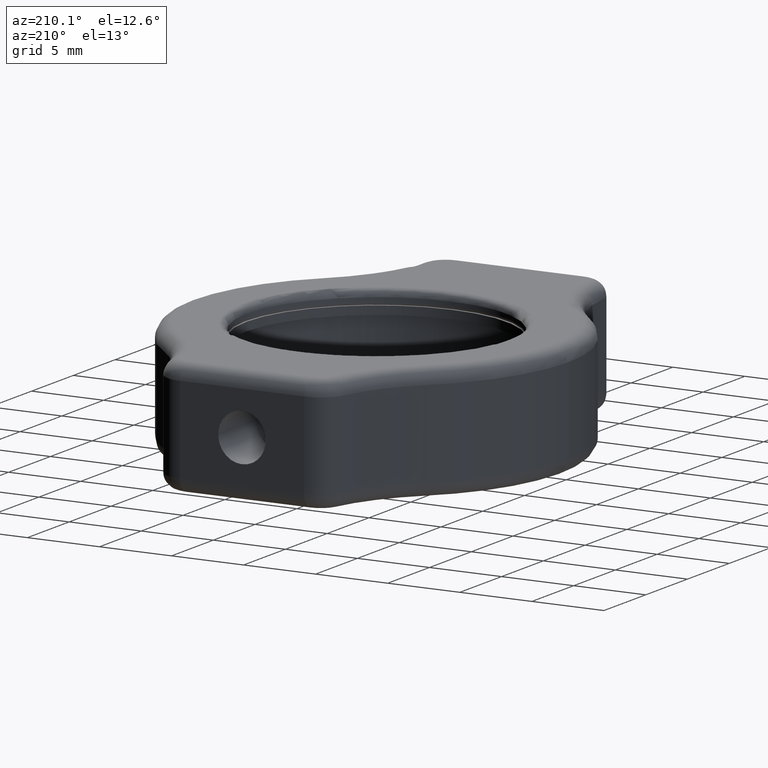
[diagram: clean part render]
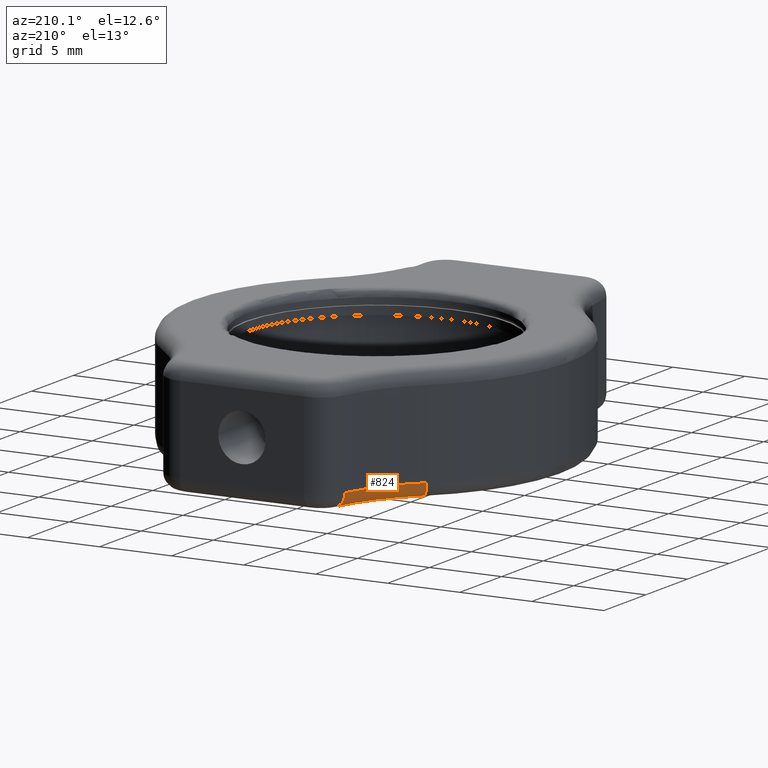
[diagram: same view with one face highlighted and labeled with its STEP entity id]
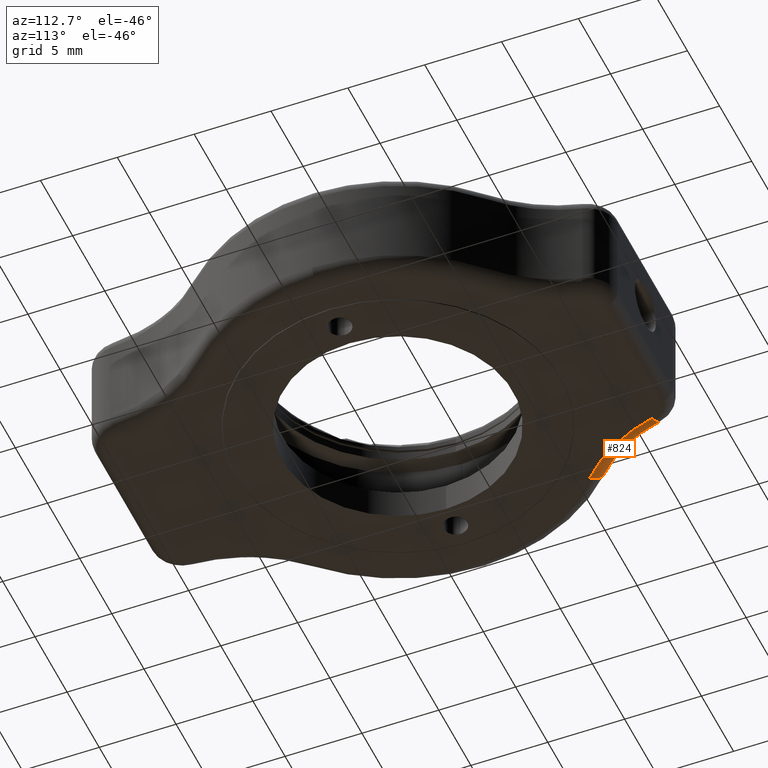
[diagram: same view with one face highlighted and labeled with its STEP entity id]
A machine part, auxiliary view. The second image highlights one B-rep face of the part: STEP entity #824.
A second angle (auxiliary view) of the same face is appended — the face is thin or edge-on in the first view.
In plain terms, the highlighted toroidal blend (fillet) surface has major radius 11 mm and minor (blend) radius 1 mm.
Its self-contained STEP definition (entity closure, byte-faithful):
#9 = DIRECTION ( 'NONE',  ( 0.0000000000000000000, -0.0000000000000000000, -1.000000000000000000 ) ) ;
#175 = AXIS2_PLACEMENT_3D ( 'NONE', #1927, #1401, #2238 ) ;
#195 = ORIENTED_EDGE ( 'NONE', *, *, #787, .T. ) ;
#206 = CARTESIAN_POINT ( 'NONE',  ( -3.058084450885296200, 15.97286217756941800, 30.00000000000000400 ) ) ;
#250 = VERTEX_POINT ( 'NONE', #1171 ) ;
#277 = CIRCLE ( 'NONE', #175, 1.000000000000000200 ) ;
#313 = EDGE_CURVE ( 'NONE', #1650, #1930, #277, .T. ) ;
#337 = DIRECTION ( 'NONE',  ( -0.2394903796156324400, -0.9708987372901256600, -1.684240832373419800E-015 ) ) ;
#421 = CARTESIAN_POINT ( 'NONE',  ( -6.202383685247916400, 10.59383446023992900, 30.00000000000000400 ) ) ;
#428 = EDGE_CURVE ( 'NONE', #1650, #1404, #1069, .T. ) ;
#555 = ORIENTED_EDGE ( 'NONE', *, *, #428, .F. ) ;
#691 = CARTESIAN_POINT ( 'NONE',  ( -3.058084450885296200, 15.97286217756941800, 31.00000000000000400 ) ) ;
#708 = DIRECTION ( 'NONE',  ( 1.000000000000000000, 0.0000000000000000000, 0.0000000000000000000 ) ) ;
#724 = DIRECTION ( 'NONE',  ( -0.0000000000000000000, 0.0000000000000000000, 1.000000000000000000 ) ) ;
#787 = EDGE_CURVE ( 'NONE', #250, #1404, #1659, .T. ) ;
#824 = ADVANCED_FACE ( 'NONE', ( #966 ), #1770, .T. ) ;
#869 = DIRECTION ( 'NONE',  ( 0.9708987372901256600, -0.2394903796156325200, 0.0000000000000000000 ) ) ;
#902 = EDGE_CURVE ( 'NONE', #250, #1930, #1265, .T. ) ;
#966 = FACE_OUTER_BOUND ( 'NONE', #2218, .T. ) ;
#1034 = AXIS2_PLACEMENT_3D ( 'NONE', #1435, #724, #1236 ) ;
#1045 = CARTESIAN_POINT ( 'NONE',  ( -13.73797056107668400, 18.60725635334135600, 31.00000000000000400 ) ) ;
#1069 = CIRCLE ( 'NONE', #1034, 11.00000000000000000 ) ;
#1083 = ORIENTED_EDGE ( 'NONE', *, *, #313, .T. ) ;
#1171 = CARTESIAN_POINT ( 'NONE',  ( -4.028983188175424800, 16.21235255718504900, 31.00000000000000400 ) ) ;
#1236 = DIRECTION ( 'NONE',  ( 1.000000000000000000, 0.0000000000000000000, 0.0000000000000000000 ) ) ;
#1265 = CIRCLE ( 'NONE', #2286, 9.999999999999998200 ) ;
#1401 = DIRECTION ( 'NONE',  ( 0.7284928993728562200, 0.6850533523480704100, 0.0000000000000000000 ) ) ;
#1404 = VERTEX_POINT ( 'NONE', #206 ) ;
#1435 = CARTESIAN_POINT ( 'NONE',  ( -13.73797056107668400, 18.60725635334135600, 30.00000000000000400 ) ) ;
#1581 = CARTESIAN_POINT ( 'NONE',  ( -13.73797056107668400, 18.60725635334135600, 31.00000000000000400 ) ) ;
#1650 = VERTEX_POINT ( 'NONE', #421 ) ;
#1659 = CIRCLE ( 'NONE', #2050, 1.000000000000000000 ) ;
#1722 = DIRECTION ( 'NONE',  ( 1.000000000000000000, 0.0000000000000000000, 0.0000000000000000000 ) ) ;
#1770 = TOROIDAL_SURFACE ( 'NONE', #2011, 11.00000000000000000, 1.000000000000000000 ) ;
#1843 = ORIENTED_EDGE ( 'NONE', *, *, #902, .F. ) ;
#1927 = CARTESIAN_POINT ( 'NONE',  ( -6.202383685247916400, 10.59383446023992900, 31.00000000000000400 ) ) ;
#1930 = VERTEX_POINT ( 'NONE', #1950 ) ;
#1950 = CARTESIAN_POINT ( 'NONE',  ( -6.887437037595987000, 11.32232735961278500, 31.00000000000000400 ) ) ;
#2011 = AXIS2_PLACEMENT_3D ( 'NONE', #1581, #2275, #1722 ) ;
#2050 = AXIS2_PLACEMENT_3D ( 'NONE', #691, #337, #869 ) ;
#2218 = EDGE_LOOP ( 'NONE', ( #1083, #1843, #195, #555 ) ) ;
#2238 = DIRECTION ( 'NONE',  ( -0.6850533523480704100, 0.7284928993728563300, 0.0000000000000000000 ) ) ;
#2275 = DIRECTION ( 'NONE',  ( -0.0000000000000000000, 0.0000000000000000000, 1.000000000000000000 ) ) ;
#2286 = AXIS2_PLACEMENT_3D ( 'NONE', #1045, #9, #708 ) ;